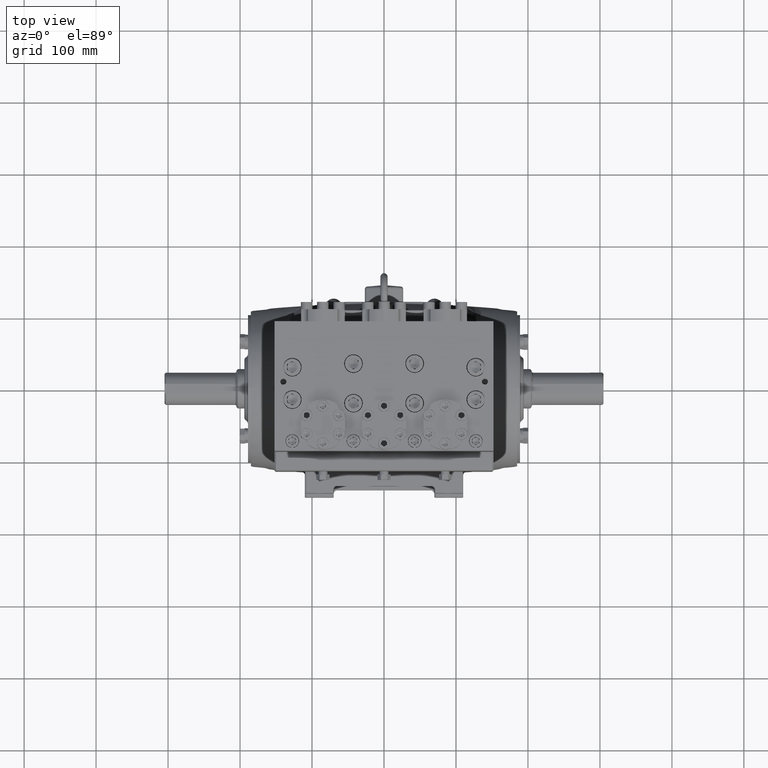
[diagram: clean part render]
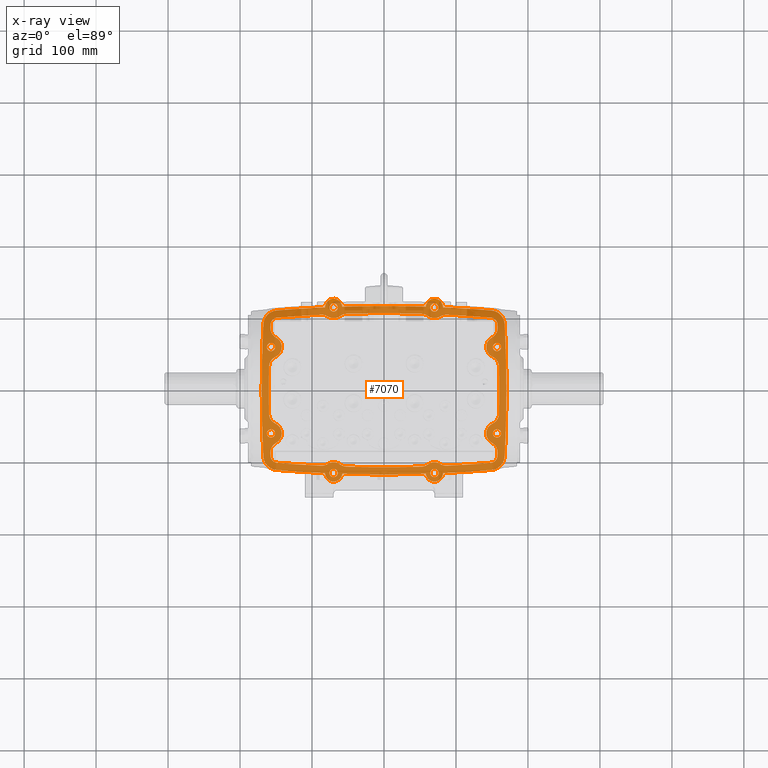
[diagram: x-ray — body ghosted, one internal face saturated and labeled with its STEP entity id]
A machine part, top view, then the same camera in x-ray: the body is ghosted and one INTERNAL B-rep face — a face not visible from any outside direction — is saturated and labeled: STEP entity #7070.
In plain terms, the highlighted planar face has unit normal (-0, 0, -1).
Its self-contained STEP definition (entity closure, byte-faithful):
#25 = AXIS2_PLACEMENT_3D ( 'NONE', #36470, #62454, #49238 ) ;
#173 = DIRECTION ( 'NONE',  ( 1.000000000000000000, 0.000000000000000000, 0.000000000000000000 ) ) ;
#209 = ORIENTED_EDGE ( 'NONE', *, *, #38666, .F. ) ;
#213 = DIRECTION ( 'NONE',  ( -0.000000000000000000, -0.000000000000000000, -1.000000000000000000 ) ) ;
#227 = CARTESIAN_POINT ( 'NONE',  ( -3.402497408455763317, 3.539165555949416841, -4.527559055118111075 ) ) ;
#530 = CARTESIAN_POINT ( 'NONE',  ( -2.755905511811023612, -4.527559055118110187, -4.527559055118111075 ) ) ;
#590 = ORIENTED_EDGE ( 'NONE', *, *, #77313, .F. ) ;
#682 = AXIS2_PLACEMENT_3D ( 'NONE', #24717, #6925, #5312 ) ;
#701 = VERTEX_POINT ( 'NONE', #77932 ) ;
#812 = DIRECTION ( 'NONE',  ( -0.000000000000000000, -0.000000000000000000, -1.000000000000000000 ) ) ;
#1076 = CARTESIAN_POINT ( 'NONE',  ( 2.395166083321293993, -4.059993271260593950, -4.527559055118111075 ) ) ;
#1184 = EDGE_CURVE ( 'NONE', #10635, #51137, #59985, .T. ) ;
#1348 = DIRECTION ( 'NONE',  ( -0.000000000000000000, -0.000000000000000000, -1.000000000000000000 ) ) ;
#1371 = DIRECTION ( 'NONE',  ( 1.000000000000000000, 0.000000000000000000, 0.000000000000000000 ) ) ;
#1373 = ORIENTED_EDGE ( 'NONE', *, *, #26741, .F. ) ;
#1402 = DIRECTION ( 'NONE',  ( 0.000000000000000000, 0.000000000000000000, 1.000000000000000000 ) ) ;
#1480 = DIRECTION ( 'NONE',  ( -1.000000000000000000, 0.000000000000000000, 0.000000000000000000 ) ) ;
#1608 = CARTESIAN_POINT ( 'NONE',  ( 2.051618992759716598, -4.182728360702411052, -4.527559055118111075 ) ) ;
#1641 = ORIENTED_EDGE ( 'NONE', *, *, #33286, .T. ) ;
#1741 = FACE_OUTER_BOUND ( 'NONE', #12788, .T. ) ;
#1935 = CIRCLE ( 'NONE', #78405, 0.5905511811023615998 ) ;
#2123 = AXIS2_PLACEMENT_3D ( 'NONE', #49522, #74742, #12386 ) ;
#2147 = FACE_BOUND ( 'NONE', #42724, .T. ) ;
#2506 = AXIS2_PLACEMENT_3D ( 'NONE', #2724, #66267, #41095 ) ;
#2636 = DIRECTION ( 'NONE',  ( 1.000000000000000000, 0.000000000000000000, 0.000000000000000000 ) ) ;
#2690 = ORIENTED_EDGE ( 'NONE', *, *, #27019, .F. ) ;
#2724 = CARTESIAN_POINT ( 'NONE',  ( -2.755905511811023612, -4.527559055118110187, -4.527559055118111075 ) ) ;
#2930 = VERTEX_POINT ( 'NONE', #9673 ) ;
#2943 = CARTESIAN_POINT ( 'NONE',  ( -3.402497408455758876, -3.539165555949416841, -4.527559055118111075 ) ) ;
#2952 = CARTESIAN_POINT ( 'NONE',  ( 64.17322834645669616, 0.000000000000000000, -4.527559055118111075 ) ) ;
#3025 = CARTESIAN_POINT ( 'NONE',  ( 2.755905511811023612, -4.527559055118110187, -4.527559055118111075 ) ) ;
#3083 = ORIENTED_EDGE ( 'NONE', *, *, #73244, .F. ) ;
#3108 = CIRCLE ( 'NONE', #49252, 0.5905511811023624880 ) ;
#3149 = AXIS2_PLACEMENT_3D ( 'NONE', #51148, #39171, #19817 ) ;
#3264 = CARTESIAN_POINT ( 'NONE',  ( 5.846811382010109526, -3.969636542835851767, -4.527559055118111075 ) ) ;
#3664 = CIRCLE ( 'NONE', #28735, 0.5905511811023583801 ) ;
#3745 = CARTESIAN_POINT ( 'NONE',  ( -64.17322834645669616, 0.000000000000000000, -4.527559055118111075 ) ) ;
#3753 = DIRECTION ( 'NONE',  ( 0.000000000000000000, 0.000000000000000000, 1.000000000000000000 ) ) ;
#3903 = ORIENTED_EDGE ( 'NONE', *, *, #78588, .F. ) ;
#3999 = CARTESIAN_POINT ( 'NONE',  ( -6.407480314960631418, 2.362204724409448620, -4.527559055118111075 ) ) ;
#4004 = AXIS2_PLACEMENT_3D ( 'NONE', #26526, #12897, #52052 ) ;
#4211 = VERTEX_POINT ( 'NONE', #27182 ) ;
#4331 = CIRCLE ( 'NONE', #67627, 0.5905511811023621549 ) ;
#4511 = CIRCLE ( 'NONE', #20398, 0.2263779527559057203 ) ;
#4913 = ORIENTED_EDGE ( 'NONE', *, *, #7610, .F. ) ;
#5036 = DIRECTION ( 'NONE',  ( -0.000000000000000000, -0.000000000000000000, -1.000000000000000000 ) ) ;
#5058 = VERTEX_POINT ( 'NONE', #65242 ) ;
#5220 = AXIS2_PLACEMENT_3D ( 'NONE', #38495, #25322, #12115 ) ;
#5312 = DIRECTION ( 'NONE',  ( 1.000000000000000000, 0.000000000000000000, 0.000000000000000000 ) ) ;
#5315 = DIRECTION ( 'NONE',  ( 0.000000000000000000, 0.000000000000000000, 1.000000000000000000 ) ) ;
#5534 = CARTESIAN_POINT ( 'NONE',  ( -2.755905511811023612, -4.527559055118110187, -4.527559055118111075 ) ) ;
#5539 = VERTEX_POINT ( 'NONE', #63161 ) ;
#5599 = AXIS2_PLACEMENT_3D ( 'NONE', #33237, #13817, #14230 ) ;
#5803 = CARTESIAN_POINT ( 'NONE',  ( 3.228318182014415783, -4.532727752454131398, -4.527559055118111075 ) ) ;
#5991 = CARTESIAN_POINT ( 'NONE',  ( 6.407480314960629642, -2.362204724409448620, -4.527559055118111075 ) ) ;
#6215 = CIRCLE ( 'NONE', #28605, 70.86614173228345237 ) ;
#6420 = CARTESIAN_POINT ( 'NONE',  ( 5.696847126488339796, -1.284939828162086073, -4.527559055118111075 ) ) ;
#6512 = VERTEX_POINT ( 'NONE', #13333 ) ;
#6783 = EDGE_CURVE ( 'NONE', #68322, #64374, #72463, .T. ) ;
#6925 = DIRECTION ( 'NONE',  ( 0.000000000000000000, 0.000000000000000000, 1.000000000000000000 ) ) ;
#7070 = ADVANCED_FACE ( 'NONE', ( #1741, #57884, #33157, #52091, #76510, #7952, #76906, #14960, #2147, #20358 ), #63678, .F. ) ;
#7125 = DIRECTION ( 'NONE',  ( -0.000000000000000000, -0.000000000000000000, -1.000000000000000000 ) ) ;
#7396 = CARTESIAN_POINT ( 'NONE',  ( 2.755905511811023612, 4.527559055118110187, -4.527559055118111075 ) ) ;
#7402 = CARTESIAN_POINT ( 'NONE',  ( -3.079201460133393464, 4.033362305533763958, -4.527559055118111075 ) ) ;
#7610 = EDGE_CURVE ( 'NONE', #22830, #57107, #44809, .T. ) ;
#7626 = AXIS2_PLACEMENT_3D ( 'NONE', #530, #25344, #24927 ) ;
#7899 = VERTEX_POINT ( 'NONE', #47731 ) ;
#7904 = VERTEX_POINT ( 'NONE', #8156 ) ;
#7930 = VERTEX_POINT ( 'NONE', #39923 ) ;
#7938 = CARTESIAN_POINT ( 'NONE',  ( -64.17322834645669616, 0.000000000000000000, -4.527559055118111075 ) ) ;
#7952 = FACE_BOUND ( 'NONE', #57659, .T. ) ;
#7954 = ORIENTED_EDGE ( 'NONE', *, *, #57553, .T. ) ;
#8156 = CARTESIAN_POINT ( 'NONE',  ( 6.207335136765494532, 3.597390236545523035, -4.527559055118111075 ) ) ;
#8347 = DIRECTION ( 'NONE',  ( -1.000000000000000000, 0.000000000000000000, 0.000000000000000000 ) ) ;
#8368 = CARTESIAN_POINT ( 'NONE',  ( -2.034426654831562598, -3.592427487403074604, -4.527559055118111075 ) ) ;
#8509 = DIRECTION ( 'NONE',  ( 0.000000000000000000, 0.000000000000000000, 1.000000000000000000 ) ) ;
#8655 = CARTESIAN_POINT ( 'NONE',  ( -64.17322834645669616, 0.000000000000000000, -4.527559055118111075 ) ) ;
#8761 = CARTESIAN_POINT ( 'NONE',  ( 5.954724409448817646, -2.362204724409448620, -4.527559055118111075 ) ) ;
#8924 = DIRECTION ( 'NONE',  ( 1.000000000000000000, 0.000000000000000000, 0.000000000000000000 ) ) ;
#8941 = EDGE_CURVE ( 'NONE', #701, #28279, #62154, .T. ) ;
#9024 = CARTESIAN_POINT ( 'NONE',  ( -5.846811382010106861, 3.969636542835870419, -4.527559055118111075 ) ) ;
#9267 = CIRCLE ( 'NONE', #80503, 70.47244094488189603 ) ;
#9270 = DIRECTION ( 'NONE',  ( 0.000000000000000000, 0.000000000000000000, 1.000000000000000000 ) ) ;
#9424 = CIRCLE ( 'NONE', #18684, 0.5905511811023621549 ) ;
#9485 = ORIENTED_EDGE ( 'NONE', *, *, #67824, .F. ) ;
#9532 = ORIENTED_EDGE ( 'NONE', *, *, #30319, .F. ) ;
#9673 = CARTESIAN_POINT ( 'NONE',  ( -6.600522642258368933, 3.617487388704958562, -4.527559055118111075 ) ) ;
#10043 = CARTESIAN_POINT ( 'NONE',  ( 5.903390719813585541, 2.883383140291963187, -4.527559055118111075 ) ) ;
#10108 = EDGE_LOOP ( 'NONE', ( #52810, #18715 ) ) ;
#10228 = DIRECTION ( 'NONE',  ( -1.000000000000000000, 0.000000000000000000, 0.000000000000000000 ) ) ;
#10376 = DIRECTION ( 'NONE',  ( 0.000000000000000000, 0.000000000000000000, 1.000000000000000000 ) ) ;
#10391 = DIRECTION ( 'NONE',  ( 1.000000000000000000, 0.000000000000000000, 0.000000000000000000 ) ) ;
#10421 = VERTEX_POINT ( 'NONE', #32159 ) ;
#10468 = ORIENTED_EDGE ( 'NONE', *, *, #27502, .T. ) ;
#10630 = VERTEX_POINT ( 'NONE', #3999 ) ;
#10635 = VERTEX_POINT ( 'NONE', #29614 ) ;
#10891 = DIRECTION ( 'NONE',  ( -0.000000000000000000, -0.000000000000000000, -1.000000000000000000 ) ) ;
#11258 = ORIENTED_EDGE ( 'NONE', *, *, #78742, .F. ) ;
#11321 = CARTESIAN_POINT ( 'NONE',  ( -5.814147631272622796, 3.577293084386040434, -4.527559055118111075 ) ) ;
#11423 = AXIS2_PLACEMENT_3D ( 'NONE', #40195, #33620, #2636 ) ;
#11437 = EDGE_LOOP ( 'NONE', ( #71508, #13243 ) ) ;
#11605 = AXIS2_PLACEMENT_3D ( 'NONE', #31182, #1402, #28945 ) ;
#11719 = CARTESIAN_POINT ( 'NONE',  ( -2.982283464566929165, 4.527559055118110187, -4.527559055118111075 ) ) ;
#11765 = CARTESIAN_POINT ( 'NONE',  ( 2.285324605308472812, -4.569440516842007582, -4.527559055118111075 ) ) ;
#11792 = CARTESIAN_POINT ( 'NONE',  ( 3.402497408455763317, 3.539165555949416841, -4.527559055118111075 ) ) ;
#11815 = EDGE_CURVE ( 'NONE', #17634, #5058, #29501, .T. ) ;
#11949 = AXIS2_PLACEMENT_3D ( 'NONE', #48333, #43386, #74372 ) ;
#12115 = DIRECTION ( 'NONE',  ( -1.000000000000000000, 0.000000000000000000, 0.000000000000000000 ) ) ;
#12253 = DIRECTION ( 'NONE',  ( 1.000000000000000000, 0.000000000000000000, 0.000000000000000000 ) ) ;
#12386 = DIRECTION ( 'NONE',  ( -1.000000000000000000, 0.000000000000000000, 0.000000000000000000 ) ) ;
#12453 = CARTESIAN_POINT ( 'NONE',  ( 2.529527559055117614, -4.527559055118110187, -4.527559055118111075 ) ) ;
#12534 = ORIENTED_EDGE ( 'NONE', *, *, #75764, .T. ) ;
#12538 = DIRECTION ( 'NONE',  ( -1.000000000000000000, 0.000000000000000000, 0.000000000000000000 ) ) ;
#12559 = ORIENTED_EDGE ( 'NONE', *, *, #73616, .F. ) ;
#12580 = DIRECTION ( 'NONE',  ( -1.000000000000000000, 0.000000000000000000, 0.000000000000000000 ) ) ;
#12788 = EDGE_LOOP ( 'NONE', ( #43452, #15849, #47632, #81519, #38192, #70267, #12534, #44953, #37166, #56684, #69249, #42112, #39011, #50668, #4913, #9485, #76393, #2690 ) ) ;
#12849 = EDGE_CURVE ( 'NONE', #75431, #80546, #67535, .T. ) ;
#12897 = DIRECTION ( 'NONE',  ( 0.000000000000000000, 0.000000000000000000, 1.000000000000000000 ) ) ;
#12966 = ORIENTED_EDGE ( 'NONE', *, *, #34456, .F. ) ;
#13243 = ORIENTED_EDGE ( 'NONE', *, *, #58016, .T. ) ;
#13245 = CIRCLE ( 'NONE', #57989, 0.2263779527559057203 ) ;
#13333 = CARTESIAN_POINT ( 'NONE',  ( -5.879475132747624677, 4.361980001285691522, -4.527559055118111075 ) ) ;
#13392 = ORIENTED_EDGE ( 'NONE', *, *, #34628, .F. ) ;
#13669 = CIRCLE ( 'NONE', #59774, 0.4724409448818896462 ) ;
#13817 = DIRECTION ( 'NONE',  ( 0.000000000000000000, 0.000000000000000000, 1.000000000000000000 ) ) ;
#14230 = DIRECTION ( 'NONE',  ( 1.000000000000000000, 0.000000000000000000, 0.000000000000000000 ) ) ;
#14274 = DIRECTION ( 'NONE',  ( 0.000000000000000000, 0.000000000000000000, 1.000000000000000000 ) ) ;
#14291 = DIRECTION ( 'NONE',  ( 1.000000000000000000, 0.000000000000000000, 0.000000000000000000 ) ) ;
#14321 = CIRCLE ( 'NONE', #42012, 0.3937007874015751585 ) ;
#14570 = CARTESIAN_POINT ( 'NONE',  ( -5.903390719813582876, -2.883383140291962743, -4.527559055118111075 ) ) ;
#14942 = DIRECTION ( 'NONE',  ( 0.000000000000000000, 0.000000000000000000, 1.000000000000000000 ) ) ;
#14960 = FACE_BOUND ( 'NONE', #11437, .T. ) ;
#14986 = DIRECTION ( 'NONE',  ( 1.000000000000000000, 0.000000000000000000, 0.000000000000000000 ) ) ;
#15005 = AXIS2_PLACEMENT_3D ( 'NONE', #24232, #48154, #12253 ) ;
#15370 = AXIS2_PLACEMENT_3D ( 'NONE', #41438, #10891, #54620 ) ;
#15483 = AXIS2_PLACEMENT_3D ( 'NONE', #7938, #7125, #58262 ) ;
#15540 = CIRCLE ( 'NONE', #61672, 0.2263779527559057203 ) ;
#15554 = CARTESIAN_POINT ( 'NONE',  ( 2.982283464566929165, -4.527559055118110187, -4.527559055118111075 ) ) ;
#15825 = EDGE_CURVE ( 'NONE', #24371, #60121, #52447, .T. ) ;
#15849 = ORIENTED_EDGE ( 'NONE', *, *, #47387, .T. ) ;
#16558 = AXIS2_PLACEMENT_3D ( 'NONE', #40516, #14942, #28967 ) ;
#16709 = DIRECTION ( 'NONE',  ( 1.000000000000000000, 0.000000000000000000, 0.000000000000000000 ) ) ;
#16719 = CIRCLE ( 'NONE', #33684, 0.3937007874015751585 ) ;
#16831 = CIRCLE ( 'NONE', #68263, 70.86614173228346658 ) ;
#16892 = AXIS2_PLACEMENT_3D ( 'NONE', #67746, #42161, #10391 ) ;
#16901 = CIRCLE ( 'NONE', #11605, 0.2263779527559057203 ) ;
#17049 = VERTEX_POINT ( 'NONE', #25586 ) ;
#17087 = DIRECTION ( 'NONE',  ( 0.000000000000000000, 0.000000000000000000, 1.000000000000000000 ) ) ;
#17096 = ORIENTED_EDGE ( 'NONE', *, *, #78758, .T. ) ;
#17257 = DIRECTION ( 'NONE',  ( 0.000000000000000000, 0.000000000000000000, 1.000000000000000000 ) ) ;
#17423 = VERTEX_POINT ( 'NONE', #1076 ) ;
#17428 = VERTEX_POINT ( 'NONE', #31678 ) ;
#17613 = CIRCLE ( 'NONE', #55817, 0.5905511811023621549 ) ;
#17634 = VERTEX_POINT ( 'NONE', #69296 ) ;
#17702 = CARTESIAN_POINT ( 'NONE',  ( -3.228318182014460191, 4.532727752454121628, -4.527559055118111075 ) ) ;
#17946 = DIRECTION ( 'NONE',  ( 1.000000000000000000, 0.000000000000000000, 0.000000000000000000 ) ) ;
#17967 = CIRCLE ( 'NONE', #2123, 0.2263779527559057203 ) ;
#18259 = CARTESIAN_POINT ( 'NONE',  ( 0.000000000000000000, 66.25984251968503713, -4.527559055118111075 ) ) ;
#18494 = DIRECTION ( 'NONE',  ( 0.000000000000000000, 0.000000000000000000, 1.000000000000000000 ) ) ;
#18611 = ORIENTED_EDGE ( 'NONE', *, *, #1184, .F. ) ;
#18684 = AXIS2_PLACEMENT_3D ( 'NONE', #11792, #54282, #29968 ) ;
#18715 = ORIENTED_EDGE ( 'NONE', *, *, #63434, .F. ) ;
#18817 = CARTESIAN_POINT ( 'NONE',  ( 64.17322834645669616, 0.000000000000000000, -4.527559055118111075 ) ) ;
#18845 = DIRECTION ( 'NONE',  ( -1.000000000000000000, 0.000000000000000000, 0.000000000000000000 ) ) ;
#19030 = DIRECTION ( 'NONE',  ( 1.000000000000000000, 0.000000000000000000, 0.000000000000000000 ) ) ;
#19183 = CIRCLE ( 'NONE', #3149, 0.2263779527559057203 ) ;
#19324 = ORIENTED_EDGE ( 'NONE', *, *, #32609, .T. ) ;
#19789 = CARTESIAN_POINT ( 'NONE',  ( 5.846811382010106861, 3.969636542835870419, -4.527559055118111075 ) ) ;
#19817 = DIRECTION ( 'NONE',  ( -1.000000000000000000, 0.000000000000000000, 0.000000000000000000 ) ) ;
#20117 = CARTESIAN_POINT ( 'NONE',  ( 3.402497408455758876, -3.539165555949416841, -4.527559055118111075 ) ) ;
#20176 = VERTEX_POINT ( 'NONE', #40660 ) ;
#20292 = VERTEX_POINT ( 'NONE', #66045 ) ;
#20358 = FACE_BOUND ( 'NONE', #20616, .T. ) ;
#20398 = AXIS2_PLACEMENT_3D ( 'NONE', #3025, #34813, #41809 ) ;
#20595 = ORIENTED_EDGE ( 'NONE', *, *, #20812, .F. ) ;
#20616 = EDGE_LOOP ( 'NONE', ( #21229, #54671 ) ) ;
#20803 = CIRCLE ( 'NONE', #15483, 70.86614173228345237 ) ;
#20812 = EDGE_CURVE ( 'NONE', #20176, #40939, #30465, .T. ) ;
#20850 = DIRECTION ( 'NONE',  ( 0.000000000000000000, 0.000000000000000000, 1.000000000000000000 ) ) ;
#21229 = ORIENTED_EDGE ( 'NONE', *, *, #56317, .T. ) ;
#21248 = EDGE_CURVE ( 'NONE', #28279, #37994, #37109, .T. ) ;
#21292 = AXIS2_PLACEMENT_3D ( 'NONE', #28855, #40404, #39997 ) ;
#21539 = EDGE_CURVE ( 'NONE', #80546, #63385, #71378, .T. ) ;
#21577 = DIRECTION ( 'NONE',  ( -1.000000000000000000, 0.000000000000000000, 0.000000000000000000 ) ) ;
#21616 = EDGE_CURVE ( 'NONE', #29865, #5539, #30680, .T. ) ;
#21885 = VERTEX_POINT ( 'NONE', #5991 ) ;
#22197 = EDGE_CURVE ( 'NONE', #79630, #27557, #25465, .T. ) ;
#22319 = DIRECTION ( 'NONE',  ( 0.000000000000000000, 0.000000000000000000, 1.000000000000000000 ) ) ;
#22480 = CIRCLE ( 'NONE', #69912, 70.47244094488188182 ) ;
#22485 = CARTESIAN_POINT ( 'NONE',  ( -5.879475132747616684, -4.361980001285688857, -4.527559055118111075 ) ) ;
#22490 = CARTESIAN_POINT ( 'NONE',  ( 64.17322834645669616, 0.000000000000000000, -4.527559055118111075 ) ) ;
#22517 = CIRCLE ( 'NONE', #38374, 70.47244094488188182 ) ;
#22684 = CARTESIAN_POINT ( 'NONE',  ( -2.395166083321290884, 4.059993271260593062, -4.527559055118111075 ) ) ;
#22722 = DIRECTION ( 'NONE',  ( -1.000000000000000000, 0.000000000000000000, 0.000000000000000000 ) ) ;
#22830 = VERTEX_POINT ( 'NONE', #74107 ) ;
#22931 = ORIENTED_EDGE ( 'NONE', *, *, #65969, .T. ) ;
#23014 = CARTESIAN_POINT ( 'NONE',  ( -2.755905511811023612, -4.527559055118110187, -4.527559055118111075 ) ) ;
#23157 = DIRECTION ( 'NONE',  ( -0.000000000000000000, -0.000000000000000000, -1.000000000000000000 ) ) ;
#23217 = CIRCLE ( 'NONE', #33752, 0.5905511811023611557 ) ;
#23493 = AXIS2_PLACEMENT_3D ( 'NONE', #73154, #49178, #61566 ) ;
#23573 = CARTESIAN_POINT ( 'NONE',  ( 0.000000000000000000, 66.25984251968503713, -4.527559055118111075 ) ) ;
#23586 = DIRECTION ( 'NONE',  ( -1.000000000000000000, 0.000000000000000000, 0.000000000000000000 ) ) ;
#24017 = CARTESIAN_POINT ( 'NONE',  ( 5.938974744346534607, 1.823572276285768456, -4.527559055118111075 ) ) ;
#24232 = CARTESIAN_POINT ( 'NONE',  ( -6.181102362204723200, -2.362204724409448620, -4.527559055118111075 ) ) ;
#24371 = VERTEX_POINT ( 'NONE', #60448 ) ;
#24377 = CARTESIAN_POINT ( 'NONE',  ( 5.814147631272622796, 3.577293084386040434, -4.527559055118111075 ) ) ;
#24674 = DIRECTION ( 'NONE',  ( -0.000000000000000000, -0.000000000000000000, -1.000000000000000000 ) ) ;
#24712 = ORIENTED_EDGE ( 'NONE', *, *, #59605, .F. ) ;
#24717 = CARTESIAN_POINT ( 'NONE',  ( -2.755905511811023612, 4.527559055118110187, -4.527559055118111075 ) ) ;
#24927 = DIRECTION ( 'NONE',  ( 1.000000000000000000, 0.000000000000000000, 0.000000000000000000 ) ) ;
#25020 = ORIENTED_EDGE ( 'NONE', *, *, #36049, .F. ) ;
#25207 = DIRECTION ( 'NONE',  ( -1.000000000000000000, 0.000000000000000000, 0.000000000000000000 ) ) ;
#25322 = DIRECTION ( 'NONE',  ( -0.000000000000000000, -0.000000000000000000, -1.000000000000000000 ) ) ;
#25344 = DIRECTION ( 'NONE',  ( 0.000000000000000000, 0.000000000000000000, 1.000000000000000000 ) ) ;
#25465 = CIRCLE ( 'NONE', #79506, 0.5905511811023611557 ) ;
#25491 = DIRECTION ( 'NONE',  ( -1.000000000000000000, 0.000000000000000000, 0.000000000000000000 ) ) ;
#25586 = CARTESIAN_POINT ( 'NONE',  ( 6.407480314960631418, 2.362204724409448620, -4.527559055118111075 ) ) ;
#25840 = CARTESIAN_POINT ( 'NONE',  ( 3.228318182014460191, 4.532727752454121628, -4.527559055118111075 ) ) ;
#26246 = VERTEX_POINT ( 'NONE', #38320 ) ;
#26496 = ORIENTED_EDGE ( 'NONE', *, *, #15825, .T. ) ;
#26526 = CARTESIAN_POINT ( 'NONE',  ( -5.814147631272622796, -3.577293084386014232, -4.527559055118111075 ) ) ;
#26650 = EDGE_CURVE ( 'NONE', #39043, #20176, #56122, .T. ) ;
#26655 = AXIS2_PLACEMENT_3D ( 'NONE', #6420, #213, #50560 ) ;
#26706 = AXIS2_PLACEMENT_3D ( 'NONE', #20117, #49842, #57634 ) ;
#26739 = CARTESIAN_POINT ( 'NONE',  ( -6.181102362204725864, 2.362204724409448620, -4.527559055118111075 ) ) ;
#26741 = EDGE_CURVE ( 'NONE', #58026, #10635, #37711, .T. ) ;
#26793 = EDGE_LOOP ( 'NONE', ( #27613, #78862 ) ) ;
#27006 = CARTESIAN_POINT ( 'NONE',  ( 6.207335136765503414, -3.597390236545475073, -4.527559055118111075 ) ) ;
#27019 = EDGE_CURVE ( 'NONE', #60387, #44606, #53569, .T. ) ;
#27182 = CARTESIAN_POINT ( 'NONE',  ( 5.938974744346532830, -1.823572276285768901, -4.527559055118111075 ) ) ;
#27347 = DIRECTION ( 'NONE',  ( 0.000000000000000000, 0.000000000000000000, 1.000000000000000000 ) ) ;
#27475 = AXIS2_PLACEMENT_3D ( 'NONE', #44120, #61799, #43220 ) ;
#27483 = AXIS2_PLACEMENT_3D ( 'NONE', #35177, #52098, #21577 ) ;
#27502 = EDGE_CURVE ( 'NONE', #31446, #7904, #16719, .T. ) ;
#27557 = VERTEX_POINT ( 'NONE', #7402 ) ;
#27613 = ORIENTED_EDGE ( 'NONE', *, *, #75168, .F. ) ;
#27782 = CARTESIAN_POINT ( 'NONE',  ( -2.755905511811023612, 4.527559055118110187, -4.527559055118111075 ) ) ;
#28279 = VERTEX_POINT ( 'NONE', #5803 ) ;
#28285 = DIRECTION ( 'NONE',  ( -0.000000000000000000, -0.000000000000000000, -1.000000000000000000 ) ) ;
#28480 = DIRECTION ( 'NONE',  ( -0.000000000000000000, -0.000000000000000000, -1.000000000000000000 ) ) ;
#28505 = ORIENTED_EDGE ( 'NONE', *, *, #58756, .F. ) ;
#28563 = AXIS2_PLACEMENT_3D ( 'NONE', #5534, #55862, #43093 ) ;
#28571 = CIRCLE ( 'NONE', #15370, 0.5905511811023583801 ) ;
#28580 = DIRECTION ( 'NONE',  ( -1.000000000000000000, 0.000000000000000000, 0.000000000000000000 ) ) ;
#28600 = VERTEX_POINT ( 'NONE', #36258 ) ;
#28605 = AXIS2_PLACEMENT_3D ( 'NONE', #18817, #74950, #55905 ) ;
#28735 = AXIS2_PLACEMENT_3D ( 'NONE', #71157, #39782, #73103 ) ;
#28855 = CARTESIAN_POINT ( 'NONE',  ( 6.181102362204723200, -2.362204724409448620, -4.527559055118111075 ) ) ;
#28894 = CARTESIAN_POINT ( 'NONE',  ( 5.696847126488341573, 1.284939828162086073, -4.527559055118111075 ) ) ;
#28945 = DIRECTION ( 'NONE',  ( 1.000000000000000000, 0.000000000000000000, 0.000000000000000000 ) ) ;
#28967 = DIRECTION ( 'NONE',  ( -1.000000000000000000, 0.000000000000000000, 0.000000000000000000 ) ) ;
#28977 = CIRCLE ( 'NONE', #72448, 70.47244094488188182 ) ;
#28999 = DIRECTION ( 'NONE',  ( 1.000000000000000000, 0.000000000000000000, 0.000000000000000000 ) ) ;
#29112 = CARTESIAN_POINT ( 'NONE',  ( 0.000000000000000000, -66.25984251968503713, -4.527559055118111075 ) ) ;
#29308 = DIRECTION ( 'NONE',  ( -1.000000000000000000, 0.000000000000000000, 0.000000000000000000 ) ) ;
#29501 = CIRCLE ( 'NONE', #15005, 0.2263779527559057203 ) ;
#29614 = CARTESIAN_POINT ( 'NONE',  ( -2.395166083321293993, -4.059993271260593950, -4.527559055118111075 ) ) ;
#29704 = EDGE_CURVE ( 'NONE', #27557, #65031, #4331, .T. ) ;
#29865 = VERTEX_POINT ( 'NONE', #34461 ) ;
#29905 = CARTESIAN_POINT ( 'NONE',  ( -5.696847126488341573, 1.284939828162086073, -4.527559055118111075 ) ) ;
#29968 = DIRECTION ( 'NONE',  ( -1.000000000000000000, 0.000000000000000000, 0.000000000000000000 ) ) ;
#30068 = VERTEX_POINT ( 'NONE', #14570 ) ;
#30194 = DIRECTION ( 'NONE',  ( 1.000000000000000000, 0.000000000000000000, 0.000000000000000000 ) ) ;
#30319 = EDGE_CURVE ( 'NONE', #10421, #79630, #3108, .T. ) ;
#30320 = EDGE_CURVE ( 'NONE', #20292, #80470, #13669, .T. ) ;
#30375 = VERTEX_POINT ( 'NONE', #12453 ) ;
#30411 = CIRCLE ( 'NONE', #56755, 0.2263779527559057203 ) ;
#30429 = DIRECTION ( 'NONE',  ( 0.000000000000000000, 0.000000000000000000, 1.000000000000000000 ) ) ;
#30465 = CIRCLE ( 'NONE', #4004, 0.3937007874015751585 ) ;
#30609 = DIRECTION ( 'NONE',  ( 0.000000000000000000, 0.000000000000000000, 1.000000000000000000 ) ) ;
#30680 = CIRCLE ( 'NONE', #26706, 0.5905511811023621549 ) ;
#30824 = DIRECTION ( 'NONE',  ( 1.000000000000000000, 0.000000000000000000, 0.000000000000000000 ) ) ;
#31109 = CARTESIAN_POINT ( 'NONE',  ( 64.17322834645669616, 0.000000000000000000, -4.527559055118111075 ) ) ;
#31182 = CARTESIAN_POINT ( 'NONE',  ( -6.181102362204723200, -2.362204724409448620, -4.527559055118111075 ) ) ;
#31446 = VERTEX_POINT ( 'NONE', #19789 ) ;
#31568 = ORIENTED_EDGE ( 'NONE', *, *, #77911, .F. ) ;
#31678 = CARTESIAN_POINT ( 'NONE',  ( 5.903390719813582876, -2.883383140291962743, -4.527559055118111075 ) ) ;
#31701 = DIRECTION ( 'NONE',  ( -1.000000000000000000, 0.000000000000000000, 0.000000000000000000 ) ) ;
#31848 = DIRECTION ( 'NONE',  ( 0.000000000000000000, 0.000000000000000000, 1.000000000000000000 ) ) ;
#31859 = EDGE_CURVE ( 'NONE', #28600, #45051, #37610, .T. ) ;
#31992 = AXIS2_PLACEMENT_3D ( 'NONE', #28894, #28480, #29308 ) ;
#32159 = CARTESIAN_POINT ( 'NONE',  ( -2.051618992759705939, 4.182728360702418158, -4.527559055118111075 ) ) ;
#32446 = CARTESIAN_POINT ( 'NONE',  ( -5.938974744346532830, -1.823572276285768901, -4.527559055118111075 ) ) ;
#32609 = EDGE_CURVE ( 'NONE', #41760, #17049, #19183, .T. ) ;
#32634 = AXIS2_PLACEMENT_3D ( 'NONE', #77811, #20850, #53393 ) ;
#32819 = CIRCLE ( 'NONE', #60473, 70.47244094488188182 ) ;
#32979 = VERTEX_POINT ( 'NONE', #34510 ) ;
#33157 = FACE_BOUND ( 'NONE', #64261, .T. ) ;
#33237 = CARTESIAN_POINT ( 'NONE',  ( -6.181102362204725864, 2.362204724409448620, -4.527559055118111075 ) ) ;
#33286 = EDGE_CURVE ( 'NONE', #30375, #38825, #4511, .T. ) ;
#33620 = DIRECTION ( 'NONE',  ( -0.000000000000000000, -0.000000000000000000, -1.000000000000000000 ) ) ;
#33684 = AXIS2_PLACEMENT_3D ( 'NONE', #24377, #23157, #48306 ) ;
#33752 = AXIS2_PLACEMENT_3D ( 'NONE', #7396, #64754, #70545 ) ;
#33802 = AXIS2_PLACEMENT_3D ( 'NONE', #56305, #48911, #12580 ) ;
#34069 = DIRECTION ( 'NONE',  ( -1.000000000000000000, 0.000000000000000000, 0.000000000000000000 ) ) ;
#34245 = VERTEX_POINT ( 'NONE', #10043 ) ;
#34456 = EDGE_CURVE ( 'NONE', #38927, #40724, #57361, .T. ) ;
#34461 = CARTESIAN_POINT ( 'NONE',  ( 3.431250907682156903, -4.129016328419565340, -4.527559055118111075 ) ) ;
#34510 = CARTESIAN_POINT ( 'NONE',  ( 3.079201460133393464, 4.033362305533763958, -4.527559055118111075 ) ) ;
#34628 = EDGE_CURVE ( 'NONE', #40724, #7899, #49543, .T. ) ;
#34813 = DIRECTION ( 'NONE',  ( -0.000000000000000000, -0.000000000000000000, -1.000000000000000000 ) ) ;
#34826 = CARTESIAN_POINT ( 'NONE',  ( -3.431250907682149798, 4.129016328419567117, -4.527559055118111075 ) ) ;
#35155 = DIRECTION ( 'NONE',  ( 1.000000000000000000, 0.000000000000000000, 0.000000000000000000 ) ) ;
#35177 = CARTESIAN_POINT ( 'NONE',  ( 2.755905511811023612, -4.527559055118110187, -4.527559055118111075 ) ) ;
#35247 = ORIENTED_EDGE ( 'NONE', *, *, #76172, .T. ) ;
#35386 = CARTESIAN_POINT ( 'NONE',  ( -5.814147631272645000, -3.577293084386014232, -4.527559055118111075 ) ) ;
#35390 = AXIS2_PLACEMENT_3D ( 'NONE', #56877, #5315, #43697 ) ;
#35571 = CIRCLE ( 'NONE', #81750, 70.86614173228346658 ) ;
#35574 = AXIS2_PLACEMENT_3D ( 'NONE', #47245, #28285, #34069 ) ;
#35680 = CIRCLE ( 'NONE', #11949, 0.5905511811023583801 ) ;
#36049 = EDGE_CURVE ( 'NONE', #45051, #30068, #28571, .T. ) ;
#36212 = VERTEX_POINT ( 'NONE', #8761 ) ;
#36258 = CARTESIAN_POINT ( 'NONE',  ( -6.287298468513228933, -1.295798474597251504, -4.527559055118111075 ) ) ;
#36353 = ORIENTED_EDGE ( 'NONE', *, *, #22197, .F. ) ;
#36470 = CARTESIAN_POINT ( 'NONE',  ( -5.625679077422441665, -3.404561556174479975, -4.527559055118111075 ) ) ;
#36816 = DIRECTION ( 'NONE',  ( -1.000000000000000000, 0.000000000000000000, 0.000000000000000000 ) ) ;
#36902 = AXIS2_PLACEMENT_3D ( 'NONE', #40122, #64492, #8347 ) ;
#36964 = CARTESIAN_POINT ( 'NONE',  ( 5.814147631272645000, 3.577293084386014232, -4.527559055118111075 ) ) ;
#36972 = AXIS2_PLACEMENT_3D ( 'NONE', #69228, #24674, #25491 ) ;
#37109 = CIRCLE ( 'NONE', #54202, 0.4724409448818896462 ) ;
#37166 = ORIENTED_EDGE ( 'NONE', *, *, #75513, .T. ) ;
#37610 = CIRCLE ( 'NONE', #42834, 0.5905511811023615998 ) ;
#37654 = CARTESIAN_POINT ( 'NONE',  ( -5.938974744346534607, 1.823572276285768456, -4.527559055118111075 ) ) ;
#37711 = CIRCLE ( 'NONE', #28563, 0.5905511811023583801 ) ;
#37736 = EDGE_CURVE ( 'NONE', #71521, #62580, #15540, .T. ) ;
#37943 = AXIS2_PLACEMENT_3D ( 'NONE', #36964, #73715, #66660 ) ;
#37984 = AXIS2_PLACEMENT_3D ( 'NONE', #29905, #74488, #17946 ) ;
#37994 = VERTEX_POINT ( 'NONE', #11765 ) ;
#38192 = ORIENTED_EDGE ( 'NONE', *, *, #57483, .T. ) ;
#38320 = CARTESIAN_POINT ( 'NONE',  ( 2.982283464566929165, 4.527559055118110187, -4.527559055118111075 ) ) ;
#38332 = CARTESIAN_POINT ( 'NONE',  ( 6.215528999314371639, 3.433332498902711194, -4.527559055118111075 ) ) ;
#38360 = VERTEX_POINT ( 'NONE', #44989 ) ;
#38374 = AXIS2_PLACEMENT_3D ( 'NONE', #23573, #30609, #30194 ) ;
#38433 = AXIS2_PLACEMENT_3D ( 'NONE', #41100, #8509, #8924 ) ;
#38495 = CARTESIAN_POINT ( 'NONE',  ( 5.814147631272622796, -3.577293084386014232, -4.527559055118111075 ) ) ;
#38666 = EDGE_CURVE ( 'NONE', #7899, #41679, #42039, .T. ) ;
#38773 = CARTESIAN_POINT ( 'NONE',  ( 2.755905511811023612, -4.527559055118110187, -4.527559055118111075 ) ) ;
#38825 = VERTEX_POINT ( 'NONE', #15554 ) ;
#38927 = VERTEX_POINT ( 'NONE', #42756 ) ;
#38946 = DIRECTION ( 'NONE',  ( 0.000000000000000000, 0.000000000000000000, 1.000000000000000000 ) ) ;
#39011 = ORIENTED_EDGE ( 'NONE', *, *, #8941, .F. ) ;
#39043 = VERTEX_POINT ( 'NONE', #74159 ) ;
#39088 = CIRCLE ( 'NONE', #37943, 0.7874015748031503170 ) ;
#39124 = ORIENTED_EDGE ( 'NONE', *, *, #21539, .T. ) ;
#39171 = DIRECTION ( 'NONE',  ( -0.000000000000000000, -0.000000000000000000, -1.000000000000000000 ) ) ;
#39181 = CARTESIAN_POINT ( 'NONE',  ( 6.600522642258369821, -3.617487388704947016, -4.527559055118111075 ) ) ;
#39424 = CARTESIAN_POINT ( 'NONE',  ( 0.000000000000000000, 66.25984251968503713, -4.527559055118111075 ) ) ;
#39782 = DIRECTION ( 'NONE',  ( -0.000000000000000000, 0.000000000000000000, 1.000000000000000000 ) ) ;
#39923 = CARTESIAN_POINT ( 'NONE',  ( -3.431250907682156903, -4.129016328419565340, -4.527559055118111075 ) ) ;
#39997 = DIRECTION ( 'NONE',  ( -1.000000000000000000, 0.000000000000000000, 0.000000000000000000 ) ) ;
#40110 = EDGE_CURVE ( 'NONE', #64374, #29865, #32819, .T. ) ;
#40122 = CARTESIAN_POINT ( 'NONE',  ( 0.000000000000000000, 66.25984251968503713, -4.527559055118111075 ) ) ;
#40195 = CARTESIAN_POINT ( 'NONE',  ( 5.814147631272645000, -3.577293084386014232, -4.527559055118111075 ) ) ;
#40404 = DIRECTION ( 'NONE',  ( -0.000000000000000000, -0.000000000000000000, -1.000000000000000000 ) ) ;
#40516 = CARTESIAN_POINT ( 'NONE',  ( -5.625679077422444330, 3.404561556174479975, -4.527559055118111075 ) ) ;
#40660 = CARTESIAN_POINT ( 'NONE',  ( -6.207335136765503414, -3.597390236545475073, -4.527559055118111075 ) ) ;
#40710 = EDGE_CURVE ( 'NONE', #75218, #64197, #71093, .T. ) ;
#40724 = VERTEX_POINT ( 'NONE', #72544 ) ;
#40730 = CARTESIAN_POINT ( 'NONE',  ( -2.051618992759716598, -4.182728360702411052, -4.527559055118111075 ) ) ;
#40926 = AXIS2_PLACEMENT_3D ( 'NONE', #23014, #17257, #173 ) ;
#40939 = VERTEX_POINT ( 'NONE', #62588 ) ;
#41035 = DIRECTION ( 'NONE',  ( -0.000000000000000000, -0.000000000000000000, -1.000000000000000000 ) ) ;
#41095 = DIRECTION ( 'NONE',  ( 1.000000000000000000, 0.000000000000000000, 0.000000000000000000 ) ) ;
#41100 = CARTESIAN_POINT ( 'NONE',  ( -5.814147631272645000, 3.577293084386014232, -4.527559055118111075 ) ) ;
#41130 = EDGE_CURVE ( 'NONE', #38360, #31446, #48633, .T. ) ;
#41156 = VERTEX_POINT ( 'NONE', #47649 ) ;
#41374 = DIRECTION ( 'NONE',  ( 1.000000000000000000, 0.000000000000000000, 0.000000000000000000 ) ) ;
#41438 = CARTESIAN_POINT ( 'NONE',  ( -6.181102362204723200, -2.362204724409448620, -4.527559055118111075 ) ) ;
#41679 = VERTEX_POINT ( 'NONE', #37654 ) ;
#41731 = CARTESIAN_POINT ( 'NONE',  ( -6.181102362204725864, 2.362204724409448620, -4.527559055118111075 ) ) ;
#41760 = VERTEX_POINT ( 'NONE', #75645 ) ;
#41809 = DIRECTION ( 'NONE',  ( -1.000000000000000000, 0.000000000000000000, 0.000000000000000000 ) ) ;
#42012 = AXIS2_PLACEMENT_3D ( 'NONE', #11321, #56278, #61673 ) ;
#42039 = CIRCLE ( 'NONE', #61794, 0.5905511811023583801 ) ;
#42112 = ORIENTED_EDGE ( 'NONE', *, *, #21248, .F. ) ;
#42124 = CARTESIAN_POINT ( 'NONE',  ( -2.529527559055117614, -4.527559055118110187, -4.527559055118111075 ) ) ;
#42150 = CIRCLE ( 'NONE', #25, 0.5905511811023615998 ) ;
#42161 = DIRECTION ( 'NONE',  ( -0.000000000000000000, -0.000000000000000000, -1.000000000000000000 ) ) ;
#42356 = CIRCLE ( 'NONE', #38433, 0.7874015748031503170 ) ;
#42724 = EDGE_LOOP ( 'NONE', ( #19324, #50117 ) ) ;
#42756 = CARTESIAN_POINT ( 'NONE',  ( -6.207335136765494532, 3.597390236545523035, -4.527559055118111075 ) ) ;
#42834 = AXIS2_PLACEMENT_3D ( 'NONE', #58014, #18494, #1480 ) ;
#42891 = CIRCLE ( 'NONE', #682, 0.2263779527559057203 ) ;
#43093 = DIRECTION ( 'NONE',  ( 1.000000000000000000, 0.000000000000000000, 0.000000000000000000 ) ) ;
#43110 = EDGE_CURVE ( 'NONE', #17428, #58969, #52859, .T. ) ;
#43220 = DIRECTION ( 'NONE',  ( -1.000000000000000000, 0.000000000000000000, 0.000000000000000000 ) ) ;
#43386 = DIRECTION ( 'NONE',  ( -0.000000000000000000, 0.000000000000000000, 1.000000000000000000 ) ) ;
#43452 = ORIENTED_EDGE ( 'NONE', *, *, #79428, .F. ) ;
#43563 = VERTEX_POINT ( 'NONE', #42124 ) ;
#43697 = DIRECTION ( 'NONE',  ( 1.000000000000000000, 0.000000000000000000, 0.000000000000000000 ) ) ;
#43895 = CARTESIAN_POINT ( 'NONE',  ( -6.600522642258369821, -3.617487388704947016, -4.527559055118111075 ) ) ;
#43985 = DIRECTION ( 'NONE',  ( -0.000000000000000000, -0.000000000000000000, -1.000000000000000000 ) ) ;
#44120 = CARTESIAN_POINT ( 'NONE',  ( -64.17322834645669616, 0.000000000000000000, -4.527559055118111075 ) ) ;
#44420 = ORIENTED_EDGE ( 'NONE', *, *, #52530, .F. ) ;
#44606 = VERTEX_POINT ( 'NONE', #46220 ) ;
#44809 = CIRCLE ( 'NONE', #61987, 70.86614173228345237 ) ;
#44953 = ORIENTED_EDGE ( 'NONE', *, *, #40710, .T. ) ;
#44989 = CARTESIAN_POINT ( 'NONE',  ( 3.431250907682149798, 4.129016328419567117, -4.527559055118111075 ) ) ;
#45003 = DIRECTION ( 'NONE',  ( -1.000000000000000000, 0.000000000000000000, 0.000000000000000000 ) ) ;
#45051 = VERTEX_POINT ( 'NONE', #32446 ) ;
#46220 = CARTESIAN_POINT ( 'NONE',  ( 5.879475132747624677, 4.361980001285691522, -4.527559055118111075 ) ) ;
#46321 = AXIS2_PLACEMENT_3D ( 'NONE', #63041, #64233, #31701 ) ;
#46346 = CARTESIAN_POINT ( 'NONE',  ( 5.625679077422444330, 3.404561556174479975, -4.527559055118111075 ) ) ;
#46378 = VERTEX_POINT ( 'NONE', #69424 ) ;
#46554 = EDGE_CURVE ( 'NONE', #63954, #37994, #75721, .T. ) ;
#46652 = ORIENTED_EDGE ( 'NONE', *, *, #47381, .T. ) ;
#46657 = VERTEX_POINT ( 'NONE', #53648 ) ;
#46752 = DIRECTION ( 'NONE',  ( -0.000000000000000000, -0.000000000000000000, -1.000000000000000000 ) ) ;
#46767 = ORIENTED_EDGE ( 'NONE', *, *, #53334, .T. ) ;
#47245 = CARTESIAN_POINT ( 'NONE',  ( 0.000000000000000000, -66.25984251968503713, -4.527559055118111075 ) ) ;
#47341 = DIRECTION ( 'NONE',  ( 0.000000000000000000, 0.000000000000000000, 1.000000000000000000 ) ) ;
#47381 = EDGE_CURVE ( 'NONE', #76659, #34245, #1935, .T. ) ;
#47387 = EDGE_CURVE ( 'NONE', #46657, #20292, #63863, .T. ) ;
#47477 = CIRCLE ( 'NONE', #36972, 0.2263779527559057203 ) ;
#47495 = DIRECTION ( 'NONE',  ( -1.000000000000000000, 0.000000000000000000, 0.000000000000000000 ) ) ;
#47602 = VERTEX_POINT ( 'NONE', #63227 ) ;
#47632 = ORIENTED_EDGE ( 'NONE', *, *, #30320, .T. ) ;
#47649 = CARTESIAN_POINT ( 'NONE',  ( 2.529527559055117614, 4.527559055118110187, -4.527559055118111075 ) ) ;
#47731 = CARTESIAN_POINT ( 'NONE',  ( -5.903390719813585541, 2.883383140291963187, -4.527559055118111075 ) ) ;
#47830 = DIRECTION ( 'NONE',  ( -1.000000000000000000, 0.000000000000000000, 0.000000000000000000 ) ) ;
#48154 = DIRECTION ( 'NONE',  ( 0.000000000000000000, 0.000000000000000000, 1.000000000000000000 ) ) ;
#48306 = DIRECTION ( 'NONE',  ( 1.000000000000000000, 0.000000000000000000, 0.000000000000000000 ) ) ;
#48333 = CARTESIAN_POINT ( 'NONE',  ( 6.181102362204723200, -2.362204724409448620, -4.527559055118111075 ) ) ;
#48476 = EDGE_LOOP ( 'NONE', ( #1641, #67484 ) ) ;
#48588 = ORIENTED_EDGE ( 'NONE', *, *, #40110, .T. ) ;
#48633 = CIRCLE ( 'NONE', #35574, 70.47244094488189603 ) ;
#48787 = CARTESIAN_POINT ( 'NONE',  ( 2.755905511811023612, 4.527559055118110187, -4.527559055118111075 ) ) ;
#48862 = AXIS2_PLACEMENT_3D ( 'NONE', #72424, #41035, #36816 ) ;
#48911 = DIRECTION ( 'NONE',  ( -0.000000000000000000, -0.000000000000000000, -1.000000000000000000 ) ) ;
#49008 = EDGE_CURVE ( 'NONE', #17049, #41760, #17967, .T. ) ;
#49178 = DIRECTION ( 'NONE',  ( -0.000000000000000000, 0.000000000000000000, 1.000000000000000000 ) ) ;
#49238 = DIRECTION ( 'NONE',  ( 1.000000000000000000, 0.000000000000000000, 0.000000000000000000 ) ) ;
#49252 = AXIS2_PLACEMENT_3D ( 'NONE', #78954, #72337, #28580 ) ;
#49522 = CARTESIAN_POINT ( 'NONE',  ( 6.181102362204725864, 2.362204724409448620, -4.527559055118111075 ) ) ;
#49543 = CIRCLE ( 'NONE', #16558, 0.5905511811023615998 ) ;
#49842 = DIRECTION ( 'NONE',  ( -0.000000000000000000, -0.000000000000000000, -1.000000000000000000 ) ) ;
#49854 = EDGE_CURVE ( 'NONE', #2930, #67790, #6215, .T. ) ;
#50117 = ORIENTED_EDGE ( 'NONE', *, *, #49008, .T. ) ;
#50560 = DIRECTION ( 'NONE',  ( 1.000000000000000000, 0.000000000000000000, 0.000000000000000000 ) ) ;
#50575 = EDGE_CURVE ( 'NONE', #36212, #21885, #70832, .T. ) ;
#50668 = ORIENTED_EDGE ( 'NONE', *, *, #64918, .F. ) ;
#51137 = VERTEX_POINT ( 'NONE', #40730 ) ;
#51148 = CARTESIAN_POINT ( 'NONE',  ( 6.181102362204725864, 2.362204724409448620, -4.527559055118111075 ) ) ;
#51303 = CARTESIAN_POINT ( 'NONE',  ( 2.034426654831562598, -3.592427487403074604, -4.527559055118111075 ) ) ;
#51498 = EDGE_CURVE ( 'NONE', #41679, #47602, #73576, .T. ) ;
#51725 = DIRECTION ( 'NONE',  ( -0.000000000000000000, -0.000000000000000000, -1.000000000000000000 ) ) ;
#51791 = EDGE_CURVE ( 'NONE', #38825, #30375, #81548, .T. ) ;
#52052 = DIRECTION ( 'NONE',  ( 1.000000000000000000, 0.000000000000000000, 0.000000000000000000 ) ) ;
#52091 = FACE_BOUND ( 'NONE', #69225, .T. ) ;
#52098 = DIRECTION ( 'NONE',  ( -0.000000000000000000, -0.000000000000000000, -1.000000000000000000 ) ) ;
#52436 = ORIENTED_EDGE ( 'NONE', *, *, #58352, .T. ) ;
#52447 = CIRCLE ( 'NONE', #16892, 0.5905511811023624880 ) ;
#52520 = DIRECTION ( 'NONE',  ( 1.000000000000000000, 0.000000000000000000, 0.000000000000000000 ) ) ;
#52530 = EDGE_CURVE ( 'NONE', #55263, #38927, #14321, .T. ) ;
#52628 = CIRCLE ( 'NONE', #75090, 70.47244094488186761 ) ;
#52810 = ORIENTED_EDGE ( 'NONE', *, *, #37736, .F. ) ;
#52859 = CIRCLE ( 'NONE', #58104, 0.5905511811023615998 ) ;
#53334 = EDGE_CURVE ( 'NONE', #58969, #68322, #69645, .T. ) ;
#53393 = DIRECTION ( 'NONE',  ( 1.000000000000000000, 0.000000000000000000, 0.000000000000000000 ) ) ;
#53569 = CIRCLE ( 'NONE', #33802, 70.86614173228346658 ) ;
#53648 = CARTESIAN_POINT ( 'NONE',  ( 2.285324605308475476, 4.569440516842013800, -4.527559055118111075 ) ) ;
#53949 = ORIENTED_EDGE ( 'NONE', *, *, #6783, .T. ) ;
#53958 = ORIENTED_EDGE ( 'NONE', *, *, #41130, .T. ) ;
#54202 = AXIS2_PLACEMENT_3D ( 'NONE', #38773, #64342, #25207 ) ;
#54282 = DIRECTION ( 'NONE',  ( -0.000000000000000000, -0.000000000000000000, -1.000000000000000000 ) ) ;
#54516 = DIRECTION ( 'NONE',  ( 1.000000000000000000, 0.000000000000000000, 0.000000000000000000 ) ) ;
#54620 = DIRECTION ( 'NONE',  ( 1.000000000000000000, 0.000000000000000000, 0.000000000000000000 ) ) ;
#54671 = ORIENTED_EDGE ( 'NONE', *, *, #71084, .T. ) ;
#54944 = CIRCLE ( 'NONE', #11423, 0.7874015748031503170 ) ;
#54965 = DIRECTION ( 'NONE',  ( -1.000000000000000000, 0.000000000000000000, 0.000000000000000000 ) ) ;
#55125 = VERTEX_POINT ( 'NONE', #1608 ) ;
#55263 = VERTEX_POINT ( 'NONE', #9024 ) ;
#55817 = AXIS2_PLACEMENT_3D ( 'NONE', #2943, #3753, #23586 ) ;
#55862 = DIRECTION ( 'NONE',  ( -0.000000000000000000, -0.000000000000000000, -1.000000000000000000 ) ) ;
#55905 = DIRECTION ( 'NONE',  ( 1.000000000000000000, 0.000000000000000000, 0.000000000000000000 ) ) ;
#56122 = CIRCLE ( 'NONE', #75970, 70.47244094488186761 ) ;
#56278 = DIRECTION ( 'NONE',  ( 0.000000000000000000, 0.000000000000000000, 1.000000000000000000 ) ) ;
#56285 = CIRCLE ( 'NONE', #32634, 70.47244094488188182 ) ;
#56305 = CARTESIAN_POINT ( 'NONE',  ( 0.000000000000000000, -66.25984251968503713, -4.527559055118111075 ) ) ;
#56317 = EDGE_CURVE ( 'NONE', #41156, #26246, #47477, .T. ) ;
#56500 = CARTESIAN_POINT ( 'NONE',  ( -2.529527559055117614, 4.527559055118110187, -4.527559055118111075 ) ) ;
#56684 = ORIENTED_EDGE ( 'NONE', *, *, #69488, .T. ) ;
#56755 = AXIS2_PLACEMENT_3D ( 'NONE', #41731, #10376, #54516 ) ;
#56807 = CARTESIAN_POINT ( 'NONE',  ( -2.755905511811023612, 4.527559055118110187, -4.527559055118111075 ) ) ;
#56832 = AXIS2_PLACEMENT_3D ( 'NONE', #72361, #46752, #41374 ) ;
#56850 = CIRCLE ( 'NONE', #21292, 0.2263779527559057203 ) ;
#56877 = CARTESIAN_POINT ( 'NONE',  ( 64.17322834645669616, 0.000000000000000000, -4.527559055118111075 ) ) ;
#57094 = EDGE_CURVE ( 'NONE', #40939, #7930, #22517, .T. ) ;
#57107 = VERTEX_POINT ( 'NONE', #39181 ) ;
#57361 = CIRCLE ( 'NONE', #78503, 70.47244094488186761 ) ;
#57483 = EDGE_CURVE ( 'NONE', #6512, #2930, #42356, .T. ) ;
#57553 = EDGE_CURVE ( 'NONE', #32979, #38360, #9424, .T. ) ;
#57634 = DIRECTION ( 'NONE',  ( 1.000000000000000000, 0.000000000000000000, 0.000000000000000000 ) ) ;
#57656 = DIRECTION ( 'NONE',  ( -0.000000000000000000, -0.000000000000000000, -1.000000000000000000 ) ) ;
#57659 = EDGE_LOOP ( 'NONE', ( #9532, #590, #26496, #22931, #7954, #53958, #10468, #61318, #46652, #72374, #78207, #39124, #52436, #17096, #62442, #46767, #53949, #48588, #76272, #35247, #59246, #66224, #18611, #1373, #28505, #72219, #20595, #76458, #31568, #25020, #71133, #3903, #75674, #209, #13392, #12966, #44420, #3083, #62276, #36353 ) ) ;
#57831 = CIRCLE ( 'NONE', #2506, 0.4724409448818896462 ) ;
#57877 = AXIS2_PLACEMENT_3D ( 'NONE', #35386, #47341, #59319 ) ;
#57884 = FACE_BOUND ( 'NONE', #26793, .T. ) ;
#57989 = AXIS2_PLACEMENT_3D ( 'NONE', #48787, #5036, #54965 ) ;
#58014 = CARTESIAN_POINT ( 'NONE',  ( -5.696847126488339796, -1.284939828162086073, -4.527559055118111075 ) ) ;
#58016 = EDGE_CURVE ( 'NONE', #21885, #36212, #56850, .T. ) ;
#58026 = VERTEX_POINT ( 'NONE', #70057 ) ;
#58104 = AXIS2_PLACEMENT_3D ( 'NONE', #79613, #66764, #10228 ) ;
#58262 = DIRECTION ( 'NONE',  ( -1.000000000000000000, 0.000000000000000000, 0.000000000000000000 ) ) ;
#58352 = EDGE_CURVE ( 'NONE', #63385, #4211, #62235, .T. ) ;
#58359 = CIRCLE ( 'NONE', #78209, 0.5905511811023621549 ) ;
#58756 = EDGE_CURVE ( 'NONE', #7930, #58026, #17613, .T. ) ;
#58969 = VERTEX_POINT ( 'NONE', #80581 ) ;
#59055 = CIRCLE ( 'NONE', #23493, 0.5905511811023583801 ) ;
#59246 = ORIENTED_EDGE ( 'NONE', *, *, #60742, .T. ) ;
#59319 = DIRECTION ( 'NONE',  ( -1.000000000000000000, 0.000000000000000000, 0.000000000000000000 ) ) ;
#59450 = CARTESIAN_POINT ( 'NONE',  ( 0.000000000000000000, 66.25984251968503713, -4.527559055118111075 ) ) ;
#59605 = EDGE_CURVE ( 'NONE', #10630, #73954, #80763, .T. ) ;
#59774 = AXIS2_PLACEMENT_3D ( 'NONE', #27782, #77732, #28999 ) ;
#59863 = AXIS2_PLACEMENT_3D ( 'NONE', #59450, #22319, #22722 ) ;
#59985 = CIRCLE ( 'NONE', #71858, 0.5905511811023621549 ) ;
#60121 = VERTEX_POINT ( 'NONE', #71904 ) ;
#60244 = CARTESIAN_POINT ( 'NONE',  ( 0.000000000000000000, -66.25984251968503713, -4.527559055118111075 ) ) ;
#60387 = VERTEX_POINT ( 'NONE', #25840 ) ;
#60448 = CARTESIAN_POINT ( 'NONE',  ( 2.051618992759705939, 4.182728360702418158, -4.527559055118111075 ) ) ;
#60473 = AXIS2_PLACEMENT_3D ( 'NONE', #39424, #69575, #76614 ) ;
#60634 = DIRECTION ( 'NONE',  ( -0.000000000000000000, -0.000000000000000000, -1.000000000000000000 ) ) ;
#60742 = EDGE_CURVE ( 'NONE', #17423, #55125, #58359, .T. ) ;
#61224 = CARTESIAN_POINT ( 'NONE',  ( -6.692913385826751771, 0.000000000000000000, -4.527559055118111075 ) ) ;
#61318 = ORIENTED_EDGE ( 'NONE', *, *, #69800, .T. ) ;
#61566 = DIRECTION ( 'NONE',  ( -1.000000000000000000, 0.000000000000000000, 0.000000000000000000 ) ) ;
#61672 = AXIS2_PLACEMENT_3D ( 'NONE', #56807, #14274, #70414 ) ;
#61673 = DIRECTION ( 'NONE',  ( -1.000000000000000000, 0.000000000000000000, 0.000000000000000000 ) ) ;
#61794 = AXIS2_PLACEMENT_3D ( 'NONE', #26739, #57656, #70062 ) ;
#61799 = DIRECTION ( 'NONE',  ( -0.000000000000000000, -0.000000000000000000, -1.000000000000000000 ) ) ;
#61987 = AXIS2_PLACEMENT_3D ( 'NONE', #8655, #60634, #47830 ) ;
#62154 = CIRCLE ( 'NONE', #56832, 70.86614173228346658 ) ;
#62235 = CIRCLE ( 'NONE', #26655, 0.5905511811023615998 ) ;
#62276 = ORIENTED_EDGE ( 'NONE', *, *, #29704, .F. ) ;
#62442 = ORIENTED_EDGE ( 'NONE', *, *, #43110, .T. ) ;
#62454 = DIRECTION ( 'NONE',  ( 0.000000000000000000, 0.000000000000000000, 1.000000000000000000 ) ) ;
#62580 = VERTEX_POINT ( 'NONE', #11719 ) ;
#62588 = CARTESIAN_POINT ( 'NONE',  ( -5.846811382010109526, -3.969636542835851767, -4.527559055118111075 ) ) ;
#62637 = CARTESIAN_POINT ( 'NONE',  ( -5.954724409448820310, 2.362204724409448620, -4.527559055118111075 ) ) ;
#63041 = CARTESIAN_POINT ( 'NONE',  ( -64.17322834645669616, 0.000000000000000000, -4.527559055118111075 ) ) ;
#63161 = CARTESIAN_POINT ( 'NONE',  ( 3.079201460133389912, -4.033362305533764847, -4.527559055118111075 ) ) ;
#63227 = CARTESIAN_POINT ( 'NONE',  ( -6.287298468513228933, 1.295798474597258831, -4.527559055118111075 ) ) ;
#63371 = CARTESIAN_POINT ( 'NONE',  ( 6.181102362204723200, -2.362204724409448620, -4.527559055118111075 ) ) ;
#63385 = VERTEX_POINT ( 'NONE', #74273 ) ;
#63420 = CIRCLE ( 'NONE', #48862, 0.4724409448818896462 ) ;
#63434 = EDGE_CURVE ( 'NONE', #62580, #71521, #42891, .T. ) ;
#63678 = PLANE ( 'NONE',  #36902 ) ;
#63863 = CIRCLE ( 'NONE', #81079, 70.86614173228346658 ) ;
#63954 = VERTEX_POINT ( 'NONE', #69173 ) ;
#64197 = VERTEX_POINT ( 'NONE', #22485 ) ;
#64233 = DIRECTION ( 'NONE',  ( -0.000000000000000000, -0.000000000000000000, -1.000000000000000000 ) ) ;
#64261 = EDGE_LOOP ( 'NONE', ( #72748, #12559 ) ) ;
#64342 = DIRECTION ( 'NONE',  ( -0.000000000000000000, -0.000000000000000000, -1.000000000000000000 ) ) ;
#64374 = VERTEX_POINT ( 'NONE', #3264 ) ;
#64492 = DIRECTION ( 'NONE',  ( -0.000000000000000000, 0.000000000000000000, -1.000000000000000000 ) ) ;
#64754 = DIRECTION ( 'NONE',  ( -0.000000000000000000, 0.000000000000000000, 1.000000000000000000 ) ) ;
#64918 = EDGE_CURVE ( 'NONE', #57107, #701, #54944, .T. ) ;
#64919 = DIRECTION ( 'NONE',  ( 0.000000000000000000, 0.000000000000000000, 1.000000000000000000 ) ) ;
#65031 = VERTEX_POINT ( 'NONE', #34826 ) ;
#65242 = CARTESIAN_POINT ( 'NONE',  ( -6.407480314960629642, -2.362204724409448620, -4.527559055118111075 ) ) ;
#65584 = AXIS2_PLACEMENT_3D ( 'NONE', #63371, #43985, #18845 ) ;
#65969 = EDGE_CURVE ( 'NONE', #60121, #32979, #23217, .T. ) ;
#66045 = CARTESIAN_POINT ( 'NONE',  ( -2.285324605308475476, 4.569440516842013800, -4.527559055118111075 ) ) ;
#66224 = ORIENTED_EDGE ( 'NONE', *, *, #74953, .F. ) ;
#66267 = DIRECTION ( 'NONE',  ( 0.000000000000000000, 0.000000000000000000, 1.000000000000000000 ) ) ;
#66660 = DIRECTION ( 'NONE',  ( -1.000000000000000000, 0.000000000000000000, 0.000000000000000000 ) ) ;
#66764 = DIRECTION ( 'NONE',  ( -0.000000000000000000, -0.000000000000000000, -1.000000000000000000 ) ) ;
#67410 = DIRECTION ( 'NONE',  ( 1.000000000000000000, 0.000000000000000000, 0.000000000000000000 ) ) ;
#67484 = ORIENTED_EDGE ( 'NONE', *, *, #51791, .T. ) ;
#67535 = CIRCLE ( 'NONE', #31992, 0.5905511811023615998 ) ;
#67627 = AXIS2_PLACEMENT_3D ( 'NONE', #227, #30429, #30824 ) ;
#67746 = CARTESIAN_POINT ( 'NONE',  ( 2.034426654831557268, 3.592427487403074604, -4.527559055118111075 ) ) ;
#67790 = VERTEX_POINT ( 'NONE', #61224 ) ;
#67824 = EDGE_CURVE ( 'NONE', #74762, #22830, #20803, .T. ) ;
#68131 = DIRECTION ( 'NONE',  ( -0.000000000000000000, -0.000000000000000000, -1.000000000000000000 ) ) ;
#68263 = AXIS2_PLACEMENT_3D ( 'NONE', #18259, #31848, #45003 ) ;
#68322 = VERTEX_POINT ( 'NONE', #27006 ) ;
#69173 = CARTESIAN_POINT ( 'NONE',  ( -2.285324605308472812, -4.569440516842007582, -4.527559055118111075 ) ) ;
#69225 = EDGE_LOOP ( 'NONE', ( #11258, #24712 ) ) ;
#69228 = CARTESIAN_POINT ( 'NONE',  ( 2.755905511811023612, 4.527559055118110187, -4.527559055118111075 ) ) ;
#69249 = ORIENTED_EDGE ( 'NONE', *, *, #46554, .T. ) ;
#69296 = CARTESIAN_POINT ( 'NONE',  ( -5.954724409448817646, -2.362204724409448620, -4.527559055118111075 ) ) ;
#69424 = CARTESIAN_POINT ( 'NONE',  ( -2.982283464566929165, -4.527559055118110187, -4.527559055118111075 ) ) ;
#69488 = EDGE_CURVE ( 'NONE', #72468, #63954, #57831, .T. ) ;
#69575 = DIRECTION ( 'NONE',  ( -0.000000000000000000, -0.000000000000000000, -1.000000000000000000 ) ) ;
#69645 = CIRCLE ( 'NONE', #27475, 70.47244094488186761 ) ;
#69800 = EDGE_CURVE ( 'NONE', #7904, #76659, #52628, .T. ) ;
#69912 = AXIS2_PLACEMENT_3D ( 'NONE', #2952, #27347, #35155 ) ;
#70057 = CARTESIAN_POINT ( 'NONE',  ( -3.079201460133389912, -4.033362305533764847, -4.527559055118111075 ) ) ;
#70062 = DIRECTION ( 'NONE',  ( 1.000000000000000000, 0.000000000000000000, 0.000000000000000000 ) ) ;
#70267 = ORIENTED_EDGE ( 'NONE', *, *, #49854, .T. ) ;
#70414 = DIRECTION ( 'NONE',  ( 1.000000000000000000, 0.000000000000000000, 0.000000000000000000 ) ) ;
#70545 = DIRECTION ( 'NONE',  ( -1.000000000000000000, 0.000000000000000000, 0.000000000000000000 ) ) ;
#70711 = DIRECTION ( 'NONE',  ( 1.000000000000000000, 0.000000000000000000, 0.000000000000000000 ) ) ;
#70832 = CIRCLE ( 'NONE', #65584, 0.2263779527559057203 ) ;
#71084 = EDGE_CURVE ( 'NONE', #26246, #41156, #13245, .T. ) ;
#71093 = CIRCLE ( 'NONE', #57877, 0.7874015748031503170 ) ;
#71133 = ORIENTED_EDGE ( 'NONE', *, *, #31859, .F. ) ;
#71157 = CARTESIAN_POINT ( 'NONE',  ( 6.181102362204725864, 2.362204724409448620, -4.527559055118111075 ) ) ;
#71254 = CARTESIAN_POINT ( 'NONE',  ( 0.000000000000000000, -66.25984251968503713, -4.527559055118111075 ) ) ;
#71378 = CIRCLE ( 'NONE', #46321, 70.47244094488188182 ) ;
#71508 = ORIENTED_EDGE ( 'NONE', *, *, #50575, .T. ) ;
#71521 = VERTEX_POINT ( 'NONE', #56500 ) ;
#71539 = CARTESIAN_POINT ( 'NONE',  ( 0.000000000000000000, -66.25984251968503713, -4.527559055118111075 ) ) ;
#71732 = EDGE_CURVE ( 'NONE', #46378, #43563, #76553, .T. ) ;
#71858 = AXIS2_PLACEMENT_3D ( 'NONE', #8368, #64919, #70711 ) ;
#71904 = CARTESIAN_POINT ( 'NONE',  ( 2.395166083321290884, 4.059993271260593062, -4.527559055118111075 ) ) ;
#72062 = DIRECTION ( 'NONE',  ( 0.000000000000000000, 0.000000000000000000, 1.000000000000000000 ) ) ;
#72219 = ORIENTED_EDGE ( 'NONE', *, *, #57094, .F. ) ;
#72269 = CARTESIAN_POINT ( 'NONE',  ( -3.228318182014415783, -4.532727752454131398, -4.527559055118111075 ) ) ;
#72337 = DIRECTION ( 'NONE',  ( 0.000000000000000000, 0.000000000000000000, 1.000000000000000000 ) ) ;
#72361 = CARTESIAN_POINT ( 'NONE',  ( 0.000000000000000000, 66.25984251968503713, -4.527559055118111075 ) ) ;
#72374 = ORIENTED_EDGE ( 'NONE', *, *, #73700, .T. ) ;
#72424 = CARTESIAN_POINT ( 'NONE',  ( 2.755905511811023612, 4.527559055118110187, -4.527559055118111075 ) ) ;
#72448 = AXIS2_PLACEMENT_3D ( 'NONE', #29112, #79478, #16709 ) ;
#72463 = CIRCLE ( 'NONE', #5220, 0.3937007874015751585 ) ;
#72468 = VERTEX_POINT ( 'NONE', #72269 ) ;
#72544 = CARTESIAN_POINT ( 'NONE',  ( -6.215528999314371639, 3.433332498902711194, -4.527559055118111075 ) ) ;
#72748 = ORIENTED_EDGE ( 'NONE', *, *, #11815, .F. ) ;
#73103 = DIRECTION ( 'NONE',  ( -1.000000000000000000, 0.000000000000000000, 0.000000000000000000 ) ) ;
#73154 = CARTESIAN_POINT ( 'NONE',  ( 2.755905511811023612, -4.527559055118110187, -4.527559055118111075 ) ) ;
#73244 = EDGE_CURVE ( 'NONE', #65031, #55263, #9267, .T. ) ;
#73418 = EDGE_CURVE ( 'NONE', #44606, #74762, #39088, .T. ) ;
#73486 = DIRECTION ( 'NONE',  ( 0.000000000000000000, 0.000000000000000000, 1.000000000000000000 ) ) ;
#73576 = CIRCLE ( 'NONE', #37984, 0.5905511811023615998 ) ;
#73616 = EDGE_CURVE ( 'NONE', #5058, #17634, #16901, .T. ) ;
#73700 = EDGE_CURVE ( 'NONE', #34245, #75431, #3664, .T. ) ;
#73715 = DIRECTION ( 'NONE',  ( -0.000000000000000000, -0.000000000000000000, -1.000000000000000000 ) ) ;
#73954 = VERTEX_POINT ( 'NONE', #62637 ) ;
#74107 = CARTESIAN_POINT ( 'NONE',  ( 6.692913385826751771, 0.000000000000000000, -4.527559055118111075 ) ) ;
#74159 = CARTESIAN_POINT ( 'NONE',  ( -6.215528999314378744, -3.433332498902715191, -4.527559055118111075 ) ) ;
#74273 = CARTESIAN_POINT ( 'NONE',  ( 6.287298468513228933, -1.295798474597251504, -4.527559055118111075 ) ) ;
#74372 = DIRECTION ( 'NONE',  ( -1.000000000000000000, 0.000000000000000000, 0.000000000000000000 ) ) ;
#74488 = DIRECTION ( 'NONE',  ( 0.000000000000000000, 0.000000000000000000, 1.000000000000000000 ) ) ;
#74742 = DIRECTION ( 'NONE',  ( -0.000000000000000000, -0.000000000000000000, -1.000000000000000000 ) ) ;
#74762 = VERTEX_POINT ( 'NONE', #76597 ) ;
#74950 = DIRECTION ( 'NONE',  ( 0.000000000000000000, 0.000000000000000000, 1.000000000000000000 ) ) ;
#74953 = EDGE_CURVE ( 'NONE', #51137, #55125, #56285, .T. ) ;
#75090 = AXIS2_PLACEMENT_3D ( 'NONE', #3745, #68131, #47495 ) ;
#75168 = EDGE_CURVE ( 'NONE', #43563, #46378, #78828, .T. ) ;
#75218 = VERTEX_POINT ( 'NONE', #43895 ) ;
#75431 = VERTEX_POINT ( 'NONE', #24017 ) ;
#75513 = EDGE_CURVE ( 'NONE', #64197, #72468, #16831, .T. ) ;
#75645 = CARTESIAN_POINT ( 'NONE',  ( 5.954724409448820310, 2.362204724409448620, -4.527559055118111075 ) ) ;
#75674 = ORIENTED_EDGE ( 'NONE', *, *, #51498, .F. ) ;
#75721 = CIRCLE ( 'NONE', #59863, 70.86614173228346658 ) ;
#75764 = EDGE_CURVE ( 'NONE', #67790, #75218, #81510, .T. ) ;
#75970 = AXIS2_PLACEMENT_3D ( 'NONE', #22490, #9270, #79871 ) ;
#75989 = CARTESIAN_POINT ( 'NONE',  ( -2.755905511811023612, 4.527559055118110187, -4.527559055118111075 ) ) ;
#76172 = EDGE_CURVE ( 'NONE', #5539, #17423, #59055, .T. ) ;
#76272 = ORIENTED_EDGE ( 'NONE', *, *, #21616, .T. ) ;
#76393 = ORIENTED_EDGE ( 'NONE', *, *, #73418, .F. ) ;
#76458 = ORIENTED_EDGE ( 'NONE', *, *, #26650, .F. ) ;
#76510 = FACE_BOUND ( 'NONE', #10108, .T. ) ;
#76553 = CIRCLE ( 'NONE', #40926, 0.2263779527559057203 ) ;
#76597 = CARTESIAN_POINT ( 'NONE',  ( 6.600522642258368933, 3.617487388704958562, -4.527559055118111075 ) ) ;
#76614 = DIRECTION ( 'NONE',  ( -1.000000000000000000, 0.000000000000000000, 0.000000000000000000 ) ) ;
#76659 = VERTEX_POINT ( 'NONE', #38332 ) ;
#76906 = FACE_BOUND ( 'NONE', #48476, .T. ) ;
#77313 = EDGE_CURVE ( 'NONE', #24371, #10421, #28977, .T. ) ;
#77701 = EDGE_CURVE ( 'NONE', #80470, #6512, #35571, .T. ) ;
#77732 = DIRECTION ( 'NONE',  ( 0.000000000000000000, 0.000000000000000000, 1.000000000000000000 ) ) ;
#77811 = CARTESIAN_POINT ( 'NONE',  ( 0.000000000000000000, 66.25984251968503713, -4.527559055118111075 ) ) ;
#77911 = EDGE_CURVE ( 'NONE', #30068, #39043, #42150, .T. ) ;
#77932 = CARTESIAN_POINT ( 'NONE',  ( 5.879475132747616684, -4.361980001285688857, -4.527559055118111075 ) ) ;
#78207 = ORIENTED_EDGE ( 'NONE', *, *, #12849, .T. ) ;
#78209 = AXIS2_PLACEMENT_3D ( 'NONE', #51303, #1348, #12538 ) ;
#78405 = AXIS2_PLACEMENT_3D ( 'NONE', #46346, #51725, #14986 ) ;
#78503 = AXIS2_PLACEMENT_3D ( 'NONE', #31109, #17087, #67410 ) ;
#78588 = EDGE_CURVE ( 'NONE', #47602, #28600, #22480, .T. ) ;
#78742 = EDGE_CURVE ( 'NONE', #73954, #10630, #30411, .T. ) ;
#78758 = EDGE_CURVE ( 'NONE', #4211, #17428, #35680, .T. ) ;
#78828 = CIRCLE ( 'NONE', #7626, 0.2263779527559057203 ) ;
#78862 = ORIENTED_EDGE ( 'NONE', *, *, #71732, .F. ) ;
#78954 = CARTESIAN_POINT ( 'NONE',  ( -2.034426654831557268, 3.592427487403074604, -4.527559055118111075 ) ) ;
#79428 = EDGE_CURVE ( 'NONE', #46657, #60387, #63420, .T. ) ;
#79478 = DIRECTION ( 'NONE',  ( 0.000000000000000000, 0.000000000000000000, 1.000000000000000000 ) ) ;
#79506 = AXIS2_PLACEMENT_3D ( 'NONE', #75989, #812, #19030 ) ;
#79613 = CARTESIAN_POINT ( 'NONE',  ( 5.625679077422441665, -3.404561556174479975, -4.527559055118111075 ) ) ;
#79630 = VERTEX_POINT ( 'NONE', #22684 ) ;
#79871 = DIRECTION ( 'NONE',  ( 1.000000000000000000, 0.000000000000000000, 0.000000000000000000 ) ) ;
#80453 = CARTESIAN_POINT ( 'NONE',  ( 6.287298468513228933, 1.295798474597258831, -4.527559055118111075 ) ) ;
#80470 = VERTEX_POINT ( 'NONE', #17702 ) ;
#80503 = AXIS2_PLACEMENT_3D ( 'NONE', #71254, #72062, #14291 ) ;
#80546 = VERTEX_POINT ( 'NONE', #80453 ) ;
#80581 = CARTESIAN_POINT ( 'NONE',  ( 6.215528999314378744, -3.433332498902715191, -4.527559055118111075 ) ) ;
#80763 = CIRCLE ( 'NONE', #5599, 0.2263779527559057203 ) ;
#81079 = AXIS2_PLACEMENT_3D ( 'NONE', #71539, #38946, #1371 ) ;
#81510 = CIRCLE ( 'NONE', #35390, 70.86614173228345237 ) ;
#81519 = ORIENTED_EDGE ( 'NONE', *, *, #77701, .T. ) ;
#81548 = CIRCLE ( 'NONE', #27483, 0.2263779527559057203 ) ;
#81750 = AXIS2_PLACEMENT_3D ( 'NONE', #60244, #73486, #52520 ) ;